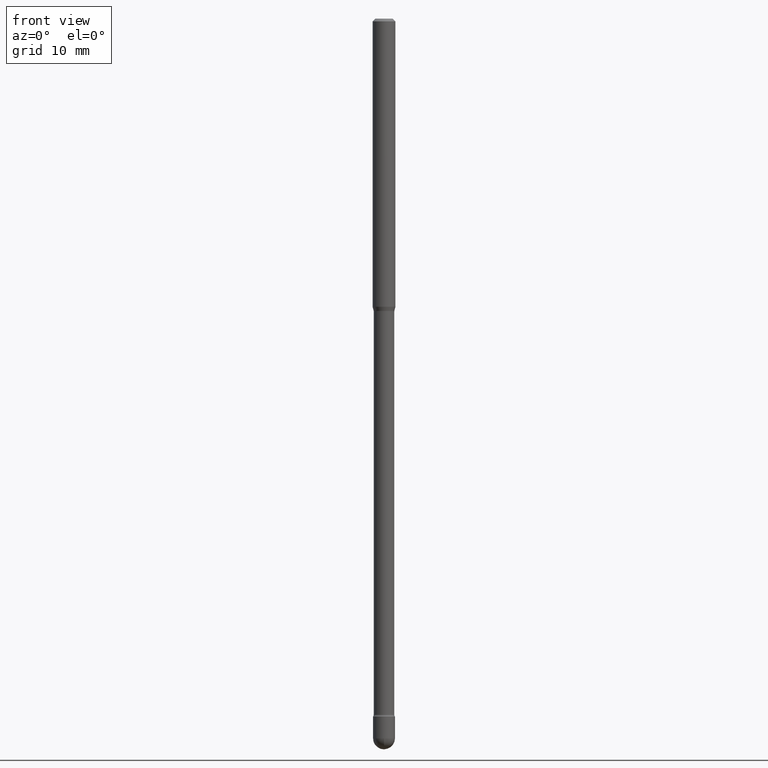
[diagram: clean part render]
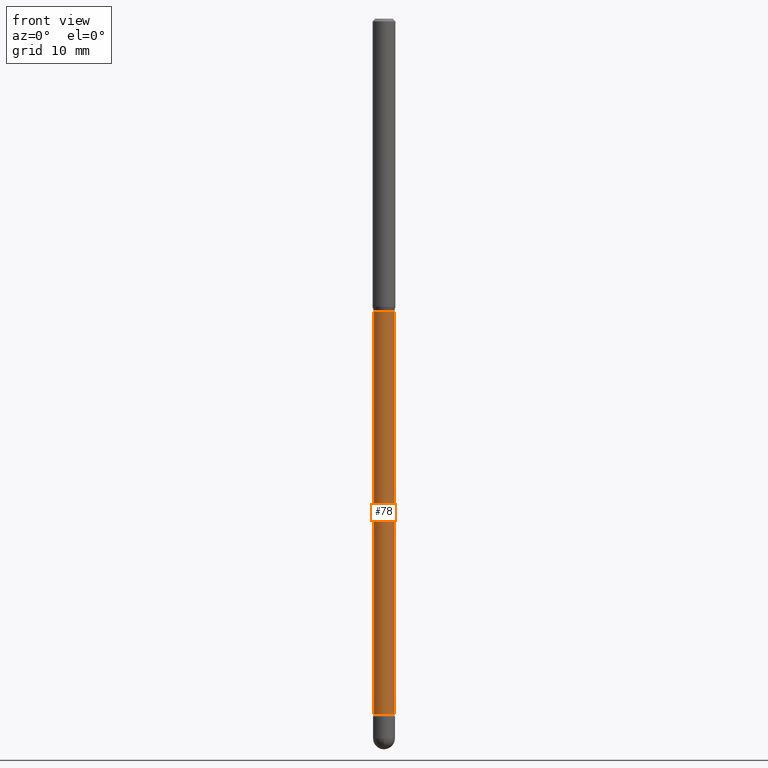
[diagram: same view with one face highlighted and labeled with its STEP entity id]
A machine part, front view. The second image highlights one B-rep face of the part: STEP entity #78.
In plain terms, the highlighted cylindrical surface (edge-blend (fillet) strip) has radius 1.4326 mm, axis along (-0, 0, 1).
Its self-contained STEP definition (entity closure, byte-faithful):
#14 = CARTESIAN_POINT ( 'NONE',  ( 0.05640000000000024855, -1.369725989521932824E-14, -3.810251153914437250 ) ) ;
#32 = ORIENTED_EDGE ( 'NONE', *, *, #514, .F. ) ;
#59 = VECTOR ( 'NONE', #308, 39.37007874015748143 ) ;
#78 = ADVANCED_FACE ( 'NONE', ( #342 ), #264, .T. ) ;
#79 = CIRCLE ( 'NONE', #274, 0.05639999999999999181 ) ;
#96 = DIRECTION ( 'NONE',  ( -2.445468806185136877E-29, 3.491481338843145188E-15, 1.000000000000000000 ) ) ;
#113 = AXIS2_PLACEMENT_3D ( 'NONE', #243, #238, #528 ) ;
#117 = EDGE_CURVE ( 'NONE', #383, #391, #131, .T. ) ;
#123 = EDGE_CURVE ( 'NONE', #216, #557, #526, .T. ) ;
#131 = LINE ( 'NONE', #524, #59 ) ;
#143 = EDGE_LOOP ( 'NONE', ( #258, #411, #184, #32 ) ) ;
#184 = ORIENTED_EDGE ( 'NONE', *, *, #123, .T. ) ;
#185 = CARTESIAN_POINT ( 'NONE',  ( -0.05639999999999999181, -9.047596834993764362E-15, -1.601974787463811278 ) ) ;
#216 = VERTEX_POINT ( 'NONE', #14 ) ;
#238 = DIRECTION ( 'NONE',  ( -2.445468806185136597E-29, 3.491481338843145583E-15, 1.000000000000000000 ) ) ;
#243 = CARTESIAN_POINT ( 'NONE',  ( 9.317850340628678124E-29, -1.330342080019781968E-14, -3.810251153914437250 ) ) ;
#258 = ORIENTED_EDGE ( 'NONE', *, *, #117, .F. ) ;
#263 = CIRCLE ( 'NONE', #113, 0.05640000000000024855 ) ;
#264 = CYLINDRICAL_SURFACE ( 'NONE', #482, 0.05640000000000012365 ) ;
#271 = CARTESIAN_POINT ( 'NONE',  ( -1.169113584055446105E-44, 1.669184350826100908E-30, 4.780733988912460139E-16 ) ) ;
#274 = AXIS2_PLACEMENT_3D ( 'NONE', #498, #490, #424 ) ;
#305 = CARTESIAN_POINT ( 'NONE',  ( -0.05640000000000024855, -1.290690388507694080E-14, -3.810251153914437250 ) ) ;
#306 = VECTOR ( 'NONE', #96, 39.37007874015748143 ) ;
#308 = DIRECTION ( 'NONE',  ( -2.445468806185136877E-29, 3.491481338843145188E-15, 1.000000000000000000 ) ) ;
#313 = CARTESIAN_POINT ( 'NONE',  ( 0.05640000000000012365, -3.938390950215046157E-16, 4.780733988912487749E-16 ) ) ;
#342 = FACE_OUTER_BOUND ( 'NONE', #143, .T. ) ;
#372 = CARTESIAN_POINT ( 'NONE',  ( 0.05639999999999999181, -5.987104170748616218E-15, -1.601974787463811278 ) ) ;
#383 = VERTEX_POINT ( 'NONE', #305 ) ;
#387 = DIRECTION ( 'NONE',  ( -2.445468806185136597E-29, 3.491481338843145583E-15, 1.000000000000000000 ) ) ;
#391 = VERTEX_POINT ( 'NONE', #185 ) ;
#397 = DIRECTION ( 'NONE',  ( 1.000000000000000000, -6.982962677686266711E-15, 4.839830652673559432E-29 ) ) ;
#411 = ORIENTED_EDGE ( 'NONE', *, *, #454, .T. ) ;
#424 = DIRECTION ( 'NONE',  ( 1.000000000000000000, -6.982962677686261977E-15, 0.000000000000000000 ) ) ;
#454 = EDGE_CURVE ( 'NONE', #383, #216, #263, .T. ) ;
#482 = AXIS2_PLACEMENT_3D ( 'NONE', #271, #387, #397 ) ;
#490 = DIRECTION ( 'NONE',  ( -2.445468806185136597E-29, 3.491481338843145583E-15, 1.000000000000000000 ) ) ;
#498 = CARTESIAN_POINT ( 'NONE',  ( 3.917579371037814600E-29, -5.593265075727111603E-15, -1.601974787463811278 ) ) ;
#514 = EDGE_CURVE ( 'NONE', #391, #557, #79, .T. ) ;
#524 = CARTESIAN_POINT ( 'NONE',  ( -0.05640000000000012365, 4.007461029686990597E-16, 4.780733988912432529E-16 ) ) ;
#526 = LINE ( 'NONE', #313, #306 ) ;
#528 = DIRECTION ( 'NONE',  ( 1.000000000000000000, -6.982962677686281699E-15, 0.000000000000000000 ) ) ;
#557 = VERTEX_POINT ( 'NONE', #372 ) ;